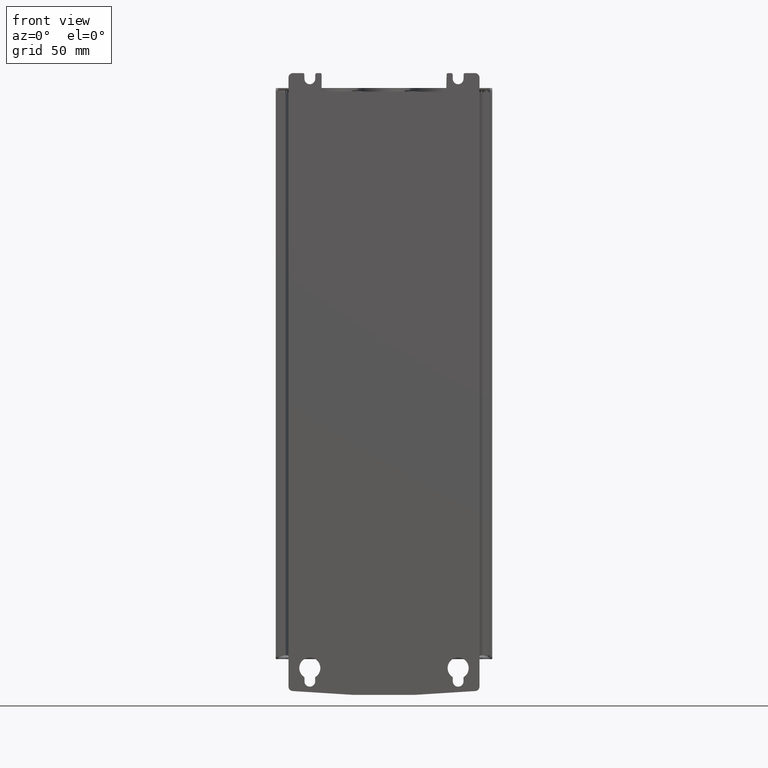
[diagram: clean part render]
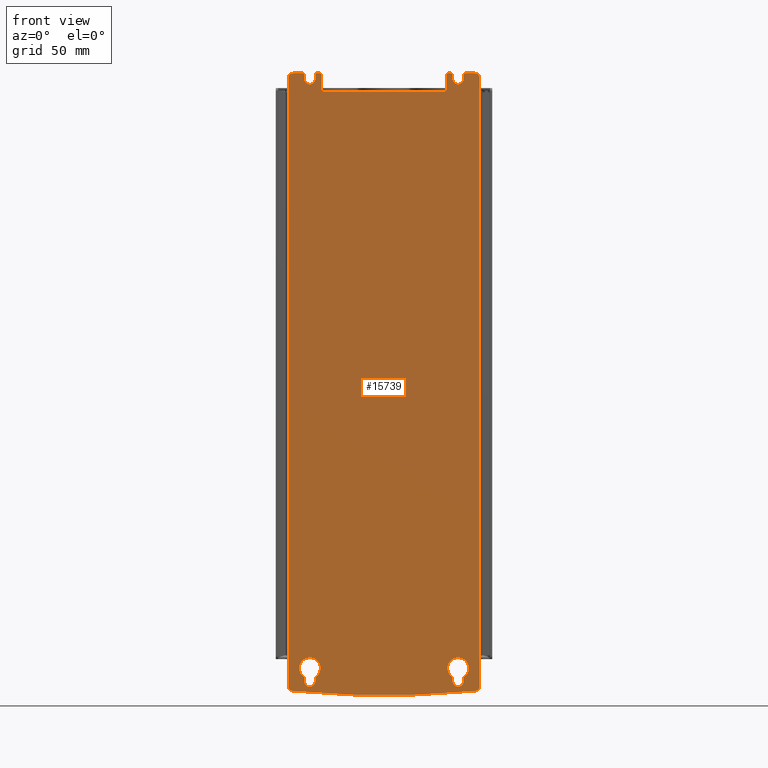
[diagram: same view with one face highlighted and labeled with its STEP entity id]
A machine part, front view. The second image highlights one B-rep face of the part: STEP entity #15739.
In plain terms, the highlighted planar face has unit normal (0, -1, 0).
Its self-contained STEP definition (entity closure, byte-faithful):
#4382=DIRECTION('',(-2.181317304322E-6,-9.566814769332E-14,-9.999999999976E-1));
#4383=VECTOR('',#4382,4.105734602360E2);
#4384=CARTESIAN_POINT('',(-7.895566747252E1,-1.224613675358E2,
1.216752053195E2));
#4385=LINE('',#4384,#4383);
#4390=CARTESIAN_POINT('',(-1.457879047846E1,-1.224613659597E2,
3.555066132713E2));
#4391=DIRECTION('',(-2.433940334999E-8,1.E0,-1.427022815465E-11));
#4392=DIRECTION('',(9.482310405416E-2,2.293731843661E-9,-9.954941380729E-1));
#4393=AXIS2_PLACEMENT_3D('',#4390,#4391,#4392);
#4395=CARTESIAN_POINT('',(-7.624107702511E1,-1.224613674698E2,
-2.918758751987E2));
#4396=CARTESIAN_POINT('',(-7.660756485487E1,-1.224613674787E2,
-2.918410102038E2));
#4397=CARTESIAN_POINT('',(-7.733334847312E1,-1.224613674963E2,
-2.916332485324E2));
#4398=CARTESIAN_POINT('',(-7.822858460429E1,-1.224613675181E2,
-2.909530942676E2));
#4399=CARTESIAN_POINT('',(-7.882052562475E1,-1.224613675325E2,
-2.899990367375E2));
#4400=CARTESIAN_POINT('',(-7.895631234703E1,-1.224613675358E2,
-2.892631398045E2));
#4401=CARTESIAN_POINT('',(-7.895656306351E1,-1.224613675358E2,
-2.888982549156E2));
#4403=CARTESIAN_POINT('',(-7.895566747252E1,-1.224613675358E2,
1.216752053195E2));
#4404=CARTESIAN_POINT('',(-7.895613879125E1,-1.224613675358E2,
1.220044970665E2));
#4405=CARTESIAN_POINT('',(-7.885693940062E1,-1.224613675334E2,
1.226167552608E2));
#4406=CARTESIAN_POINT('',(-7.842384661074E1,-1.224613675229E2,
1.234750400053E2));
#4407=CARTESIAN_POINT('',(-7.775260104231E1,-1.224613675065E2,
1.241476330170E2));
#4408=CARTESIAN_POINT('',(-7.689781493355E1,-1.224613674857E2,
1.245832336576E2));
#4409=CARTESIAN_POINT('',(-7.628044015521E1,-1.224613674707E2,
1.246843611088E2));
#4410=CARTESIAN_POINT('',(-7.595390384445E1,-1.224613674628E2,
1.246843796513E2));
#4412=CARTESIAN_POINT('',(-6.928055778813E1,-1.224613673003E2,
1.236843632887E2));
#4413=DIRECTION('',(-2.433916073853E-8,1.E0,0.E0));
#4414=DIRECTION('',(-3.555999776950E-5,-8.668621376274E-13,9.999999993677E-1));
#4415=AXIS2_PLACEMENT_3D('',#4412,#4413,#4414);
#4417=CARTESIAN_POINT('',(-6.457750431219E1,-1.224613671859E2,
1.208083632887E2));
#4418=DIRECTION('',(2.433916073853E-8,-1.E0,0.E0));
#4419=DIRECTION('',(-9.996631864938E-1,-2.433096353778E-8,-2.595213997234E-2));
#4420=AXIS2_PLACEMENT_3D('',#4417,#4418,#4419);
#4422=CARTESIAN_POINT('',(-5.987660852928E1,-1.224613670715E2,
1.236843632887E2));
#4423=DIRECTION('',(-2.433916073853E-8,1.E0,0.E0));
#4424=DIRECTION('',(-9.996769388202E-1,-2.433129964175E-8,2.541688397779E-2));
#4425=AXIS2_PLACEMENT_3D('',#4422,#4423,#4424);
#4427=CARTESIAN_POINT('',(-5.757865591162E1,-1.224613670156E2,
1.236841814573E2));
#4428=DIRECTION('',(-2.440182838910E-8,1.E0,-1.699403729470E-11));
#4429=DIRECTION('',(-2.934334881482E-4,9.832241099977E-12,9.999999569484E-1));
#4430=AXIS2_PLACEMENT_3D('',#4427,#4428,#4429);
#4432=DIRECTION('',(2.618542829470E-2,6.389844845952E-10,9.996571028833E-1));
#4433=VECTOR('',#4432,1.153017576148E1);
#4434=CARTESIAN_POINT('',(2.735308346401E1,-1.224613649484E2,1.121843632934E2));
#4435=LINE('',#4434,#4433);
#4436=CARTESIAN_POINT('',(2.865483331479E1,-1.224613649167E2,1.236841693669E2));
#4437=DIRECTION('',(-2.427070363798E-8,1.E0,-3.576430979312E-11));
#4438=DIRECTION('',(-9.996497990155E-1,-2.426126032086E-8,2.646279139104E-2));
#4439=AXIS2_PLACEMENT_3D('',#4436,#4437,#4438);
#4441=CARTESIAN_POINT('',(3.071939307116E1,-1.224613648664E2,1.236843632887E2));
#4442=DIRECTION('',(-2.433916073853E-8,1.E0,0.E0));
#4443=DIRECTION('',(9.662193658500E-6,2.415845301584E-13,9.999999999533E-1));
#4444=AXIS2_PLACEMENT_3D('',#4441,#4442,#4443);
#4446=CARTESIAN_POINT('',(3.542244654709E1,-1.224613647520E2,1.208083632887E2));
#4447=DIRECTION('',(2.433916073853E-8,-1.E0,0.E0));
#4448=DIRECTION('',(-9.996631864938E-1,-2.433096353778E-8,-2.595213997234E-2));
#4449=AXIS2_PLACEMENT_3D('',#4446,#4447,#4448);
#4451=CARTESIAN_POINT('',(4.012334233E1,-1.224613646375E2,1.236843632887E2));
#4452=DIRECTION('',(-2.433916073853E-8,1.E0,0.E0));
#4453=DIRECTION('',(-9.996769388202E-1,-2.433129964175E-8,2.541688397785E-2));
#4454=AXIS2_PLACEMENT_3D('',#4451,#4452,#4453);
#4456=CARTESIAN_POINT('',(4.680223133034E1,-1.224613644750E2,1.216834614412E2));
#4457=DIRECTION('',(-2.436636057436E-8,1.E0,-2.289390888603E-11));
#4458=DIRECTION('',(-2.275320562032E-4,1.735108611662E-11,9.999999741146E-1));
#4459=AXIS2_PLACEMENT_3D('',#4456,#4457,#4458);
#4461=CARTESIAN_POINT('',(4.680182446713E1,-1.224613644750E2,
-2.888874777109E2));
#4462=DIRECTION('',(-2.434099435E-8,1.E0,-8.010042862892E-12));
#4463=DIRECTION('',(9.999984570049E-1,2.434097115591E-8,1.756697961045E-3));
#4464=AXIS2_PLACEMENT_3D('',#4461,#4462,#4463);
#4466=CARTESIAN_POINT('',(3.542120903444E1,-1.224613647520E2,
-2.853325159831E2));
#4467=DIRECTION('',(2.434317657169E-8,-1.E0,-1.299570902219E-11));
#4468=DIRECTION('',(-9.999999275080E-1,-2.434317790250E-8,3.807675699065E-4));
#4469=AXIS2_PLACEMENT_3D('',#4466,#4467,#4468);
#4471=CARTESIAN_POINT('',(3.542529228508E1,-1.224613647519E2,
-2.764283654391E2));
#4472=DIRECTION('',(2.433203018469E-8,-1.E0,6.388770233243E-13));
#4473=DIRECTION('',(5.080852463344E-1,1.236219490502E-8,-8.613067876531E-1));
#4474=AXIS2_PLACEMENT_3D('',#4471,#4472,#4473);
#4476=CARTESIAN_POINT('',(3.542121550169E1,-1.224613647519E2,
-2.764338151288E2));
#4477=DIRECTION('',(2.434127375862E-8,-1.E0,-2.745139131939E-12));
#4478=DIRECTION('',(7.638109568007E-1,1.859036031797E-8,6.454400222105E-1));
#4479=AXIS2_PLACEMENT_3D('',#4476,#4477,#4478);
#4481=CARTESIAN_POINT('',(3.541710166085E1,-1.224613647521E2,
-2.764283780029E2));
#4482=DIRECTION('',(2.433446622602E-8,-1.E0,-2.425740124209E-12));
#4483=DIRECTION('',(-7.639424732074E-1,-1.859169850956E-8,6.452843540872E-1));
#4484=AXIS2_PLACEMENT_3D('',#4481,#4482,#4483);
#4486=CARTESIAN_POINT('',(-6.457468871942E1,-1.224613671858E2,
-2.764283685822E2));
#4487=DIRECTION('',(2.433196757107E-8,-1.E0,6.497239435881E-13));
#4488=DIRECTION('',(5.080840713649E-1,1.236212515316E-8,-8.613074807671E-1));
#4489=AXIS2_PLACEMENT_3D('',#4486,#4487,#4488);
#4491=CARTESIAN_POINT('',(-6.457878449780E1,-1.224613671859E2,
-2.764337951833E2));
#4492=DIRECTION('',(2.433902092930E-8,-1.E0,2.206133912118E-12));
#4493=DIRECTION('',(7.638124481470E-1,1.859187033898E-8,6.454382573536E-1));
#4494=AXIS2_PLACEMENT_3D('',#4491,#4492,#4493);
#4496=CARTESIAN_POINT('',(-6.458291749365E1,-1.224613671860E2,
-2.764283811259E2));
#4497=DIRECTION('',(2.433281078158E-8,-1.E0,-1.381419644322E-12));
#4498=DIRECTION('',(-7.639412813063E-1,-1.858972960652E-8,6.452857651584E-1));
#4499=AXIS2_PLACEMENT_3D('',#4496,#4497,#4498);
#4501=CARTESIAN_POINT('',(-6.457879097672E1,-1.224613671859E2,
-2.853325218572E2));
#4502=DIRECTION('',(2.434068287380E-8,-1.E0,-6.941449073895E-12));
#4503=DIRECTION('',(-9.999999239271E-1,-2.434068281068E-8,3.900586295735E-4));
#4504=AXIS2_PLACEMENT_3D('',#4501,#4502,#4503);
#4514=DIRECTION('',(-9.999999999978E-1,-2.434025650576E-8,2.101668092710E-6));
#4515=VECTOR('',#4514,6.673334203040E0);
#4516=CARTESIAN_POINT('',(-6.928056964143E1,-1.224613673003E2,
1.246843656262E2));
#4517=LINE('',#4516,#4515);
#4526=DIRECTION('',(-2.217560141129E-2,-5.321288909323E-10,9.997540911154E-1));
#4527=VECTOR('',#4526,2.997363473116E0);
#4528=CARTESIAN_POINT('',(-6.820778706117E1,-1.224613672742E2,
1.207137144455E2));
#4529=LINE('',#4528,#4527);
#4538=DIRECTION('',(-2.181585073159E-2,-5.292139193708E-10,-9.997620060079E-1));
#4539=VECTOR('',#4538,2.997358850474E0);
#4540=CARTESIAN_POINT('',(-6.088281100707E1,-1.224613670960E2,
1.237103426221E2));
#4541=LINE('',#4540,#4539);
#4550=DIRECTION('',(-9.999999999985E-1,-2.433724243138E-8,1.735900680179E-6));
#4551=VECTOR('',#4550,2.297722309862E0);
#4552=CARTESIAN_POINT('',(-5.757888958926E1,-1.224613670156E2,
1.246843586355E2));
#4553=LINE('',#4552,#4551);
#4566=DIRECTION('',(3.456802789695E-7,4.077882211765E-14,9.999999999999E-1));
#4567=VECTOR('',#4566,1.150004294505E1);
#4568=CARTESIAN_POINT('',(-5.657849730468E1,-1.224613669912E2,
1.121843632900E2));
#4569=LINE('',#4568,#4567);
#4574=DIRECTION('',(-1.E0,-2.433912348614E-8,-3.967518701788E-11));
#4575=VECTOR('',#4574,8.393158076869E1);
#4576=CARTESIAN_POINT('',(2.735308346401E1,-1.224613649484E2,1.121843632934E2));
#4577=LINE('',#4576,#4575);
#4586=DIRECTION('',(-9.999999999983E-1,-2.434152106050E-8,-1.845948385542E-6));
#4587=VECTOR('',#4586,2.064364297086E0);
#4588=CARTESIAN_POINT('',(3.071939629194E1,-1.224613648664E2,1.246843626536E2));
#4589=LINE('',#4588,#4587);
#4598=DIRECTION('',(-2.217560140961E-2,-5.321336320505E-10,9.997540911155E-1));
#4599=VECTOR('',#4598,2.997363473116E0);
#4600=CARTESIAN_POINT('',(3.179216379811E1,-1.224613648403E2,1.207137144455E2));
#4601=LINE('',#4600,#4599);
#4610=DIRECTION('',(-2.181585073161E-2,-5.403365999789E-10,-9.997620060079E-1));
#4611=VECTOR('',#4610,2.997358850475E0);
#4612=CARTESIAN_POINT('',(3.911713985222E1,-1.224613646620E2,1.237103426220E2));
#4613=LINE('',#4612,#4611);
#4622=DIRECTION('',(-9.999999999995E-1,-2.433966661068E-8,9.643546632564E-7));
#4623=VECTOR('',#4622,6.678380475019E0);
#4624=CARTESIAN_POINT('',(4.680171736491E1,-1.224613644750E2,1.246843557755E2));
#4625=LINE('',#4624,#4623);
#4634=DIRECTION('',(-6.509644243442E-7,3.904339590233E-14,9.999999999998E-1));
#4635=VECTOR('',#4634,4.105648022741E2);
#4636=CARTESIAN_POINT('',(4.980335019206E1,-1.224613644019E2,
-2.888808371134E2));
#4637=LINE('',#4636,#4635);
#4658=DIRECTION('',(-2.073683634114E-4,1.892068476180E-13,-9.999999784992E-1));
#4659=VECTOR('',#4658,2.778977775286E0);
#4660=CARTESIAN_POINT('',(3.904061157534E1,-1.224613646639E2,
-2.825564816818E2));
#4661=LINE('',#4660,#4659);
#4678=DIRECTION('',(-2.073813177123E-4,5.118551894037E-13,9.999999784965E-1));
#4679=VECTOR('',#4678,2.776342803471E0);
#4680=CARTESIAN_POINT('',(3.180238047632E1,-1.224613648401E2,
-2.853328210531E2));
#4681=LINE('',#4680,#4679);
#4682=DIRECTION('',(-2.076646083918E-4,-8.079654409453E-13,-9.999999784377E-1));
#4683=VECTOR('',#4682,2.778974113515E0);
#4684=CARTESIAN_POINT('',(-6.095938317293E1,-1.224613670978E2,
-2.825564801420E2));
#4685=LINE('',#4684,#4683);
#4702=DIRECTION('',(-2.076781090783E-4,-5.681625584259E-13,9.999999784349E-1));
#4703=VECTOR('',#4702,2.776326686781E0);
#4704=CARTESIAN_POINT('',(-6.819762395428E1,-1.224613672740E2,
-2.853328034096E2));
#4705=LINE('',#4704,#4703);
#7223=CARTESIAN_POINT('',(-7.624107702511E1,-1.224613674698E2,
-2.918758751987E2));
#7224=VERTEX_POINT('',#7223);
#7225=CARTESIAN_POINT('',(4.708585893390E1,-1.224613644681E2,
-2.918756637449E2));
#7226=VERTEX_POINT('',#7225);
#7227=CARTESIAN_POINT('',(-7.895656306351E1,-1.224613675358E2,
-2.888982549156E2));
#7228=VERTEX_POINT('',#7227);
#7229=CARTESIAN_POINT('',(-7.895566747252E1,-1.224613675358E2,
1.216752053195E2));
#7230=VERTEX_POINT('',#7229);
#7231=VERTEX_POINT('',#4410);
#7232=CARTESIAN_POINT('',(-6.928056964143E1,-1.224613673003E2,
1.246843656262E2));
#7233=VERTEX_POINT('',#7232);
#7234=CARTESIAN_POINT('',(-6.828088059650E1,-1.224613672760E2,
1.237097702275E2));
#7235=VERTEX_POINT('',#7234);
#7236=CARTESIAN_POINT('',(-6.820778706117E1,-1.224613672742E2,
1.207137144455E2));
#7237=VERTEX_POINT('',#7236);
#7238=CARTESIAN_POINT('',(-6.095472615403E1,-1.224613670977E2,
1.207142653781E2));
#7239=VERTEX_POINT('',#7238);
#7240=CARTESIAN_POINT('',(-6.088281100707E1,-1.224613670960E2,
1.237103426221E2));
#7241=VERTEX_POINT('',#7240);
#7242=CARTESIAN_POINT('',(-5.987661863899E1,-1.224613670715E2,
1.246843632886E2));
#7243=VERTEX_POINT('',#7242);
#7244=CARTESIAN_POINT('',(-5.757888958926E1,-1.224613670156E2,
1.246843586355E2));
#7245=VERTEX_POINT('',#7244);
#7246=CARTESIAN_POINT('',(-5.657848606763E1,-1.224613669912E2,
1.236844723585E2));
#7247=VERTEX_POINT('',#7246);
#7248=CARTESIAN_POINT('',(-5.657849730468E1,-1.224613669912E2,
1.121843632900E2));
#7249=VERTEX_POINT('',#7248);
#7250=CARTESIAN_POINT('',(2.735308346401E1,-1.224613649484E2,1.121843632934E2));
#7251=VERTEX_POINT('',#7250);
#7252=CARTESIAN_POINT('',(2.765500605464E1,-1.224613649410E2,1.237105853908E2));
#7253=VERTEX_POINT('',#7252);
#7254=CARTESIAN_POINT('',(2.865505779271E1,-1.224613649167E2,1.246843518469E2));
#7255=VERTEX_POINT('',#7254);
#7256=CARTESIAN_POINT('',(3.071939629194E1,-1.224613648664E2,1.246843626536E2));
#7257=VERTEX_POINT('',#7256);
#7258=CARTESIAN_POINT('',(3.171907026279E1,-1.224613648421E2,1.237097702275E2));
#7259=VERTEX_POINT('',#7258);
#7260=CARTESIAN_POINT('',(3.179216379811E1,-1.224613648403E2,1.207137144455E2));
#7261=VERTEX_POINT('',#7260);
#7262=CARTESIAN_POINT('',(3.904522470525E1,-1.224613646638E2,1.207142653781E2));
#7263=VERTEX_POINT('',#7262);
#7264=CARTESIAN_POINT('',(3.911713985222E1,-1.224613646620E2,1.237103426220E2));
#7265=VERTEX_POINT('',#7264);
#7266=CARTESIAN_POINT('',(4.012332600918E1,-1.224613646375E2,1.246843632886E2));
#7267=VERTEX_POINT('',#7266);
#7268=CARTESIAN_POINT('',(4.680171736491E1,-1.224613644750E2,1.246843557755E2));
#7269=VERTEX_POINT('',#7268);
#7270=CARTESIAN_POINT('',(4.980311387893E1,-1.224613644019E2,1.216836892802E2));
#7271=VERTEX_POINT('',#7270);
#7272=CARTESIAN_POINT('',(4.980335019206E1,-1.224613644019E2,
-2.888808371134E2));
#7273=VERTEX_POINT('',#7272);
#7274=CARTESIAN_POINT('',(3.180225767286E1,-1.224613648401E2,
-2.853311380037E2));
#7275=CARTESIAN_POINT('',(3.904016062645E1,-1.224613646639E2,
-2.853320353076E2));
#7276=VERTEX_POINT('',#7274);
#7277=VERTEX_POINT('',#7275);
#7278=CARTESIAN_POINT('',(3.904061157534E1,-1.224613646639E2,
-2.825564816818E2));
#7279=VERTEX_POINT('',#7278);
#7280=CARTESIAN_POINT('',(4.086081665006E1,-1.224613646196E2,
-2.718372113823E2));
#7281=VERTEX_POINT('',#7280);
#7282=CARTESIAN_POINT('',(2.998150563490E1,-1.224613648843E2,
-2.718370570418E2));
#7283=VERTEX_POINT('',#7282);
#7284=CARTESIAN_POINT('',(3.180208435939E1,-1.224613648401E2,
-2.825565857669E2));
#7285=VERTEX_POINT('',#7284);
#7286=CARTESIAN_POINT('',(-6.095938317293E1,-1.224613670978E2,
-2.825564801420E2));
#7287=CARTESIAN_POINT('',(-6.095996026750E1,-1.224613670978E2,
-2.853354541956E2));
#7288=VERTEX_POINT('',#7286);
#7289=VERTEX_POINT('',#7287);
#7290=CARTESIAN_POINT('',(-5.913918187479E1,-1.224613670535E2,
-2.718372117347E2));
#7291=VERTEX_POINT('',#7290);
#7292=CARTESIAN_POINT('',(-7.001849603526E1,-1.224613673183E2,
-2.718370577306E2));
#7293=VERTEX_POINT('',#7292);
#7294=CARTESIAN_POINT('',(-6.819792039250E1,-1.224613672740E2,
-2.825565838761E2));
#7295=VERTEX_POINT('',#7294);
#7296=CARTESIAN_POINT('',(-6.819762395428E1,-1.224613672740E2,
-2.853328034096E2));
#7297=VERTEX_POINT('',#7296);
#15655=CARTESIAN_POINT('',(2.980613276911E-6,-1.224613656141E2,
1.117364577420E2));
#15656=DIRECTION('',(2.433916073853E-8,-1.E0,0.E0));
#15657=DIRECTION('',(-1.E0,-2.433916073853E-8,5.740589994445E-14));
#15658=AXIS2_PLACEMENT_3D('',#15655,#15656,#15657);
#15659=PLANE('',#15658);
#15660=ORIENTED_EDGE('',*,*,#15587,.T.);
#15661=ORIENTED_EDGE('',*,*,#15621,.T.);
#15662=ORIENTED_EDGE('',*,*,#15639,.F.);
#15664=ORIENTED_EDGE('',*,*,#15663,.T.);
#15666=ORIENTED_EDGE('',*,*,#15665,.F.);
#15668=ORIENTED_EDGE('',*,*,#15667,.T.);
#15670=ORIENTED_EDGE('',*,*,#15669,.F.);
#15672=ORIENTED_EDGE('',*,*,#15671,.T.);
#15674=ORIENTED_EDGE('',*,*,#15673,.F.);
#15676=ORIENTED_EDGE('',*,*,#15675,.T.);
#15678=ORIENTED_EDGE('',*,*,#15677,.F.);
#15680=ORIENTED_EDGE('',*,*,#15679,.T.);
#15682=ORIENTED_EDGE('',*,*,#15681,.F.);
#15684=ORIENTED_EDGE('',*,*,#15683,.F.);
#15686=ORIENTED_EDGE('',*,*,#15685,.T.);
#15688=ORIENTED_EDGE('',*,*,#15687,.T.);
#15690=ORIENTED_EDGE('',*,*,#15689,.F.);
#15692=ORIENTED_EDGE('',*,*,#15691,.T.);
#15694=ORIENTED_EDGE('',*,*,#15693,.F.);
#15696=ORIENTED_EDGE('',*,*,#15695,.T.);
#15698=ORIENTED_EDGE('',*,*,#15697,.F.);
#15700=ORIENTED_EDGE('',*,*,#15699,.T.);
#15702=ORIENTED_EDGE('',*,*,#15701,.F.);
#15704=ORIENTED_EDGE('',*,*,#15703,.T.);
#15706=ORIENTED_EDGE('',*,*,#15705,.F.);
#15708=ORIENTED_EDGE('',*,*,#15707,.T.);
#15709=EDGE_LOOP('',(#15660,#15661,#15662,#15664,#15666,#15668,#15670,#15672,
#15674,#15676,#15678,#15680,#15682,#15684,#15686,#15688,#15690,#15692,#15694,
#15696,#15698,#15700,#15702,#15704,#15706,#15708));
#15710=FACE_OUTER_BOUND('',#15709,.F.);
#15712=ORIENTED_EDGE('',*,*,#15711,.T.);
#15714=ORIENTED_EDGE('',*,*,#15713,.F.);
#15716=ORIENTED_EDGE('',*,*,#15715,.T.);
#15718=ORIENTED_EDGE('',*,*,#15717,.T.);
#15720=ORIENTED_EDGE('',*,*,#15719,.T.);
#15722=ORIENTED_EDGE('',*,*,#15721,.F.);
#15723=EDGE_LOOP('',(#15712,#15714,#15716,#15718,#15720,#15722));
#15724=FACE_BOUND('',#15723,.F.);
#15726=ORIENTED_EDGE('',*,*,#15725,.F.);
#15728=ORIENTED_EDGE('',*,*,#15727,.T.);
#15730=ORIENTED_EDGE('',*,*,#15729,.T.);
#15732=ORIENTED_EDGE('',*,*,#15731,.T.);
#15734=ORIENTED_EDGE('',*,*,#15733,.F.);
#15736=ORIENTED_EDGE('',*,*,#15735,.T.);
#15737=EDGE_LOOP('',(#15726,#15728,#15730,#15732,#15734,#15736));
#15738=FACE_BOUND('',#15737,.F.);
#15739=ADVANCED_FACE('',(#15710,#15724,#15738),#15659,.T.);
#4394=CIRCLE('',#4393,6.503124953296E2);
#4402=B_SPLINE_CURVE_WITH_KNOTS('',3,(#4395,#4396,#4397,#4398,#4399,#4400,
#4401),.UNSPECIFIED.,.F.,.F.,(4,1,1,1,4),(0.E0,2.512166692017E-1,
5.011364771152E-1,7.510166032985E-1,1.E0),.UNSPECIFIED.);
#4411=B_SPLINE_CURVE_WITH_KNOTS('',3,(#4403,#4404,#4405,#4406,#4407,#4408,#4409,
#4410),.UNSPECIFIED.,.F.,.F.,(4,1,1,1,1,4),(0.E0,2.E-1,4.E-1,6.E-1,8.E-1,1.E0),
.UNSPECIFIED.);
#4416=CIRCLE('',#4415,9.999999999999E-1);
#4421=CIRCLE('',#4420,3.624E0);
#4426=CIRCLE('',#4425,9.999999999999E-1);
#4431=CIRCLE('',#4430,1.000169886288E0);
#4440=CIRCLE('',#4439,1.000182505138E0);
#4445=CIRCLE('',#4444,1.E0);
#4450=CIRCLE('',#4449,3.624E0);
#4455=CIRCLE('',#4454,9.999999999998E-1);
#4460=CIRCLE('',#4459,3.000882557238E0);
#4465=CIRCLE('',#4464,3.001630203205E0);
#4470=CIRCLE('',#4469,3.618951623926E0);
#4475=CIRCLE('',#4474,7.115027807109E0);
#4480=CIRCLE('',#4479,7.121841639990E0);
#4485=CIRCLE('',#4484,7.115003899412E0);
#4490=CIRCLE('',#4489,7.115016223180E0);
#4495=CIRCLE('',#4494,7.121829597782E0);
#4500=CIRCLE('',#4499,7.114992263268E0);
#4505=CIRCLE('',#4504,3.618953610576E0);
#15587=EDGE_CURVE('',#7226,#7224,#4394,.T.);
#15621=EDGE_CURVE('',#7224,#7228,#4402,.T.);
#15639=EDGE_CURVE('',#7230,#7228,#4385,.T.);
#15663=EDGE_CURVE('',#7230,#7231,#4411,.T.);
#15665=EDGE_CURVE('',#7233,#7231,#4517,.T.);
#15667=EDGE_CURVE('',#7233,#7235,#4416,.T.);
#15669=EDGE_CURVE('',#7237,#7235,#4529,.T.);
#15671=EDGE_CURVE('',#7237,#7239,#4421,.T.);
#15673=EDGE_CURVE('',#7241,#7239,#4541,.T.);
#15675=EDGE_CURVE('',#7241,#7243,#4426,.T.);
#15677=EDGE_CURVE('',#7245,#7243,#4553,.T.);
#15679=EDGE_CURVE('',#7245,#7247,#4431,.T.);
#15681=EDGE_CURVE('',#7249,#7247,#4569,.T.);
#15683=EDGE_CURVE('',#7251,#7249,#4577,.T.);
#15685=EDGE_CURVE('',#7251,#7253,#4435,.T.);
#15687=EDGE_CURVE('',#7253,#7255,#4440,.T.);
#15689=EDGE_CURVE('',#7257,#7255,#4589,.T.);
#15691=EDGE_CURVE('',#7257,#7259,#4445,.T.);
#15693=EDGE_CURVE('',#7261,#7259,#4601,.T.);
#15695=EDGE_CURVE('',#7261,#7263,#4450,.T.);
#15697=EDGE_CURVE('',#7265,#7263,#4613,.T.);
#15699=EDGE_CURVE('',#7265,#7267,#4455,.T.);
#15701=EDGE_CURVE('',#7269,#7267,#4625,.T.);
#15703=EDGE_CURVE('',#7269,#7271,#4460,.T.);
#15705=EDGE_CURVE('',#7273,#7271,#4637,.T.);
#15707=EDGE_CURVE('',#7273,#7226,#4465,.T.);
#15711=EDGE_CURVE('',#7276,#7277,#4470,.T.);
#15713=EDGE_CURVE('',#7279,#7277,#4661,.T.);
#15715=EDGE_CURVE('',#7279,#7281,#4475,.T.);
#15717=EDGE_CURVE('',#7281,#7283,#4480,.T.);
#15719=EDGE_CURVE('',#7283,#7285,#4485,.T.);
#15721=EDGE_CURVE('',#7276,#7285,#4681,.T.);
#15725=EDGE_CURVE('',#7288,#7289,#4685,.T.);
#15727=EDGE_CURVE('',#7288,#7291,#4490,.T.);
#15729=EDGE_CURVE('',#7291,#7293,#4495,.T.);
#15731=EDGE_CURVE('',#7293,#7295,#4500,.T.);
#15733=EDGE_CURVE('',#7297,#7295,#4705,.T.);
#15735=EDGE_CURVE('',#7297,#7289,#4505,.T.);